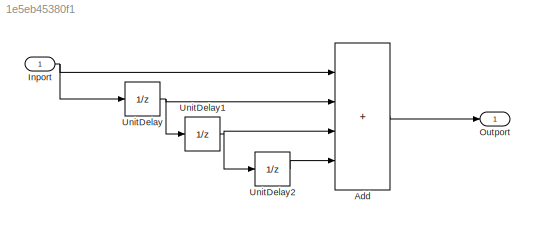
MODEL slx_1e5eb45380f1
KIND model
CONFIG AbsTol = auto
CONFIG EnableMultiTasking = off
CONFIG FixedStep = auto
CONFIG MaxStep = auto
CONFIG MinStep = auto
CONFIG RelTol = 1e-3
CONFIG SampleTimeConstraint = Unconstrained
CONFIG SolverName = VariableStepAuto
CONFIG StartTime = 0.0
CONFIG StopTime = 10.0
BLOCK [Sum] Add
  IconShape = rectangular
  Inputs = ++++
BLOCK [Inport] Inport
BLOCK [Outport] Outport
BLOCK [UnitDelay] UnitDelay
  HasFrameUpgradeWarning = on
  SampleTime = -1
BLOCK [UnitDelay] UnitDelay1
  HasFrameUpgradeWarning = on
  SampleTime = -1
BLOCK [UnitDelay] UnitDelay2
  HasFrameUpgradeWarning = on
  SampleTime = -1
LINE Add:1 -> Outport:1
NET Inport:1 -> Add:1, UnitDelay:1
NET UnitDelay1:1 -> Add:3, UnitDelay2:1
LINE UnitDelay2:1 -> Add:4
NET UnitDelay:1 -> Add:2, UnitDelay1:1
note: NET lines group one-source signal fan-out (src -> all destinations, sorted); 1:1 wires keep LINE
